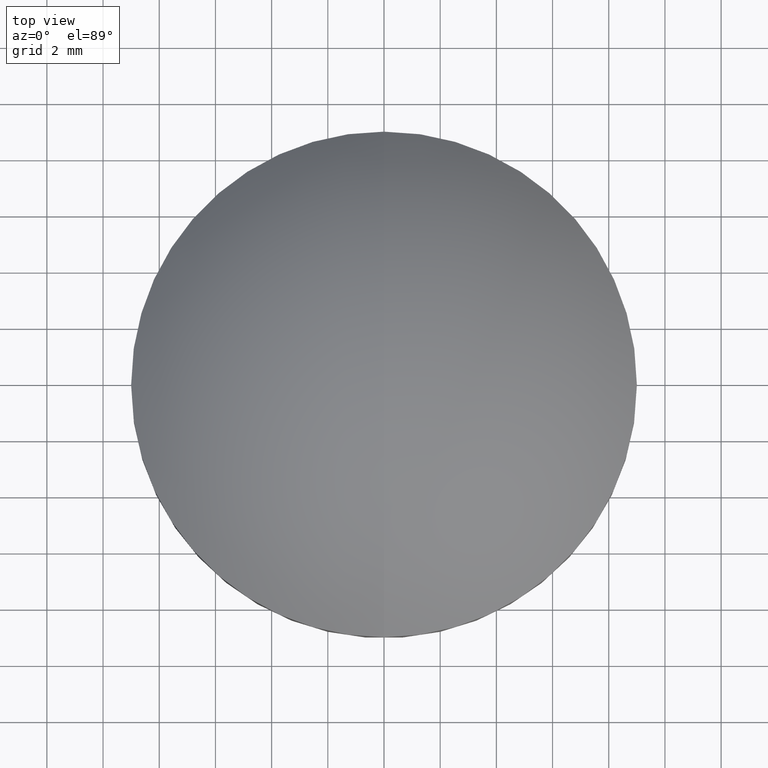
[diagram: clean part render]
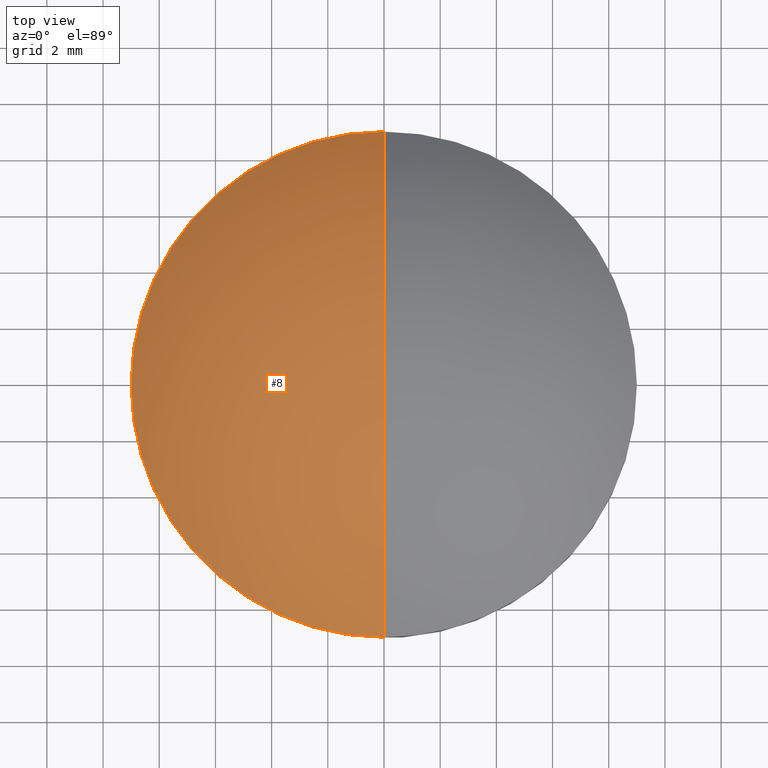
[diagram: same view with one face highlighted and labeled with its STEP entity id]
A machine part, top view. The second image highlights one B-rep face of the part: STEP entity #8.
In plain terms, the highlighted spherical surface has radius 12.87 mm.
Its self-contained STEP definition (entity closure, byte-faithful):
#1 = VERTEX_POINT ( 'NONE', #91 ) ;
#4 = VERTEX_POINT ( 'NONE', #93 ) ;
#6 = ORIENTED_EDGE ( 'NONE', *, *, #60, .T. ) ;
#8 = ADVANCED_FACE ( 'NONE', ( #81 ), #92, .T. ) ;
#9 = VERTEX_POINT ( 'NONE', #64 ) ;
#11 = EDGE_LOOP ( 'NONE', ( #18, #24, #6, #17 ) ) ;
#17 = ORIENTED_EDGE ( 'NONE', *, *, #21, .F. ) ;
#18 = ORIENTED_EDGE ( 'NONE', *, *, #27, .T. ) ;
#21 = EDGE_CURVE ( 'NONE', #9, #59, #124, .T. ) ;
#22 = EDGE_CURVE ( 'NONE', #1, #4, #126, .T. ) ;
#24 = ORIENTED_EDGE ( 'NONE', *, *, #22, .T. ) ;
#27 = EDGE_CURVE ( 'NONE', #9, #1, #120, .T. ) ;
#59 = VERTEX_POINT ( 'NONE', #216 ) ;
#60 = EDGE_CURVE ( 'NONE', #4, #59, #231, .T. ) ;
#62 = AXIS2_PLACEMENT_3D ( 'NONE', #73, #79, #78 ) ;
#64 = CARTESIAN_POINT ( 'NONE',  ( 0.0000000000000000000, 9.000000000000001800, -0.9401684798035601100 ) ) ;
#73 = CARTESIAN_POINT ( 'NONE',  ( 0.0000000000000000000, 0.0000000000000000000, -10.14000000000000100 ) ) ;
#78 = DIRECTION ( 'NONE',  ( 0.0000000000000000000, 1.000000000000000000, 0.0000000000000000000 ) ) ;
#79 = DIRECTION ( 'NONE',  ( -1.000000000000000000, 0.0000000000000000000, 0.0000000000000000000 ) ) ;
#81 = FACE_OUTER_BOUND ( 'NONE', #11, .T. ) ;
#91 = CARTESIAN_POINT ( 'NONE',  ( -9.000000000000001800, 1.102145718440139700E-015, -0.9401684798035587800 ) ) ;
#92 = SPHERICAL_SURFACE ( 'NONE', #62, 12.86999999999999900 ) ;
#93 = CARTESIAN_POINT ( 'NONE',  ( -1.102145718440139700E-015, -9.000000000000001800, -0.9401684798035601100 ) ) ;
#103 = DIRECTION ( 'NONE',  ( 1.000000000000000000, 0.0000000000000000000, 0.0000000000000000000 ) ) ;
#104 = DIRECTION ( 'NONE',  ( 0.0000000000000000000, 0.0000000000000000000, -1.000000000000000000 ) ) ;
#107 = CARTESIAN_POINT ( 'NONE',  ( 0.0000000000000000000, 0.0000000000000000000, -10.14000000000000100 ) ) ;
#109 = CARTESIAN_POINT ( 'NONE',  ( 0.0000000000000000000, 0.0000000000000000000, -0.9401684798035587800 ) ) ;
#111 = DIRECTION ( 'NONE',  ( 1.000000000000000000, 0.0000000000000000000, 0.0000000000000000000 ) ) ;
#112 = DIRECTION ( 'NONE',  ( 1.000000000000000000, 0.0000000000000000000, 0.0000000000000000000 ) ) ;
#113 = DIRECTION ( 'NONE',  ( -0.0000000000000000000, -0.0000000000000000000, 1.000000000000000000 ) ) ;
#118 = CARTESIAN_POINT ( 'NONE',  ( 0.0000000000000000000, 0.0000000000000000000, -0.9401684798035587800 ) ) ;
#119 = AXIS2_PLACEMENT_3D ( 'NONE', #118, #113, #112 ) ;
#120 = CIRCLE ( 'NONE', #119, 9.000000000000001800 ) ;
#124 = CIRCLE ( 'NONE', #125, 12.86999999999999900 ) ;
#125 = AXIS2_PLACEMENT_3D ( 'NONE', #107, #103, #104 ) ;
#126 = CIRCLE ( 'NONE', #140, 9.000000000000001800 ) ;
#130 = DIRECTION ( 'NONE',  ( -0.0000000000000000000, -0.0000000000000000000, 1.000000000000000000 ) ) ;
#140 = AXIS2_PLACEMENT_3D ( 'NONE', #109, #130, #111 ) ;
#216 = CARTESIAN_POINT ( 'NONE',  ( 0.0000000000000000000, 7.880341886846997100E-016, 2.730000000000000000 ) ) ;
#221 = DIRECTION ( 'NONE',  ( -1.000000000000000000, 1.224606353822377300E-016, 0.0000000000000000000 ) ) ;
#222 = CARTESIAN_POINT ( 'NONE',  ( 0.0000000000000000000, 0.0000000000000000000, -10.14000000000000100 ) ) ;
#223 = AXIS2_PLACEMENT_3D ( 'NONE', #222, #221, #247 ) ;
#231 = CIRCLE ( 'NONE', #223, 12.86999999999999900 ) ;
#247 = DIRECTION ( 'NONE',  ( -1.224606353822377300E-016, -1.000000000000000000, 0.0000000000000000000 ) ) ;